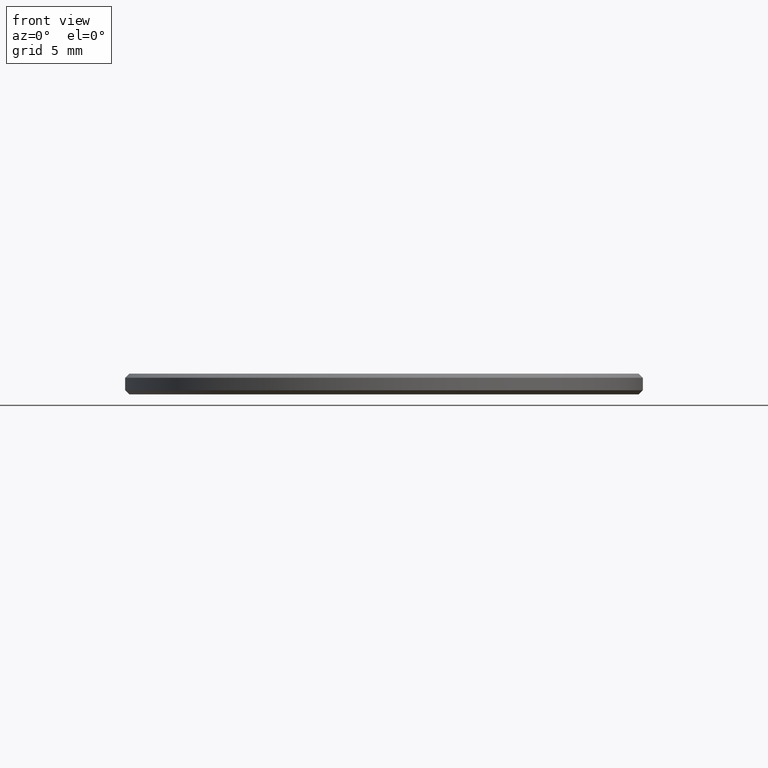
[diagram: clean part render]
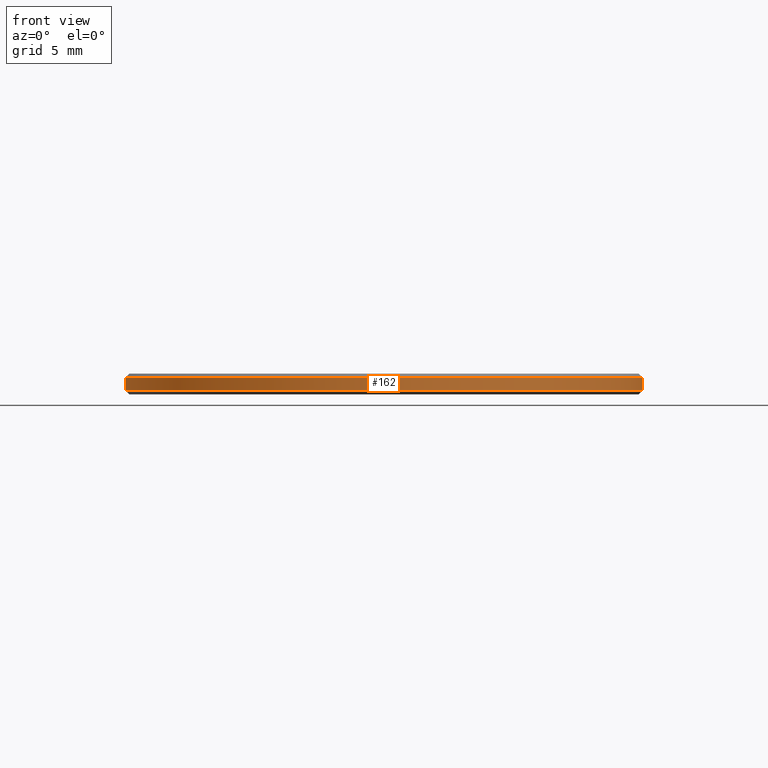
[diagram: same view with one face highlighted and labeled with its STEP entity id]
A machine part, front view. The second image highlights one B-rep face of the part: STEP entity #162.
In plain terms, the highlighted cylindrical surface (partial cylindrical patch) has radius 12.5 mm, axis along (-0, -0, -1).
Its self-contained STEP definition (entity closure, byte-faithful):
#9 = DIRECTION ( 'NONE',  ( -0.000000000000000000, -0.000000000000000000, -1.000000000000000000 ) ) ;
#10 = CARTESIAN_POINT ( 'NONE',  ( 12.50000000000000000, 1.530808498934191521E-15, 1.000000000000000000 ) ) ;
#14 = LINE ( 'NONE', #10, #15 ) ;
#15 = VECTOR ( 'NONE', #9, 1000.000000000000000 ) ;
#26 = CARTESIAN_POINT ( 'NONE',  ( 0.000000000000000000, 0.000000000000000000, 1.000000000000000000 ) ) ;
#49 = CARTESIAN_POINT ( 'NONE',  ( 0.000000000000000000, 0.000000000000000000, 0.8000000000000029310 ) ) ;
#57 = AXIS2_PLACEMENT_3D ( 'NONE', #49, #180, #197 ) ;
#58 = AXIS2_PLACEMENT_3D ( 'NONE', #159, #95, #71 ) ;
#59 = EDGE_CURVE ( 'NONE', #105, #115, #122, .T. ) ;
#64 = DIRECTION ( 'NONE',  ( -0.000000000000000000, -0.000000000000000000, -1.000000000000000000 ) ) ;
#71 = DIRECTION ( 'NONE',  ( 1.000000000000000000, 0.000000000000000000, 0.000000000000000000 ) ) ;
#79 = VERTEX_POINT ( 'NONE', #209 ) ;
#82 = CIRCLE ( 'NONE', #58, 12.50000000000000000 ) ;
#95 = DIRECTION ( 'NONE',  ( -0.000000000000000000, -0.000000000000000000, 1.000000000000000000 ) ) ;
#96 = ORIENTED_EDGE ( 'NONE', *, *, #150, .T. ) ;
#100 = ORIENTED_EDGE ( 'NONE', *, *, #200, .T. ) ;
#105 = VERTEX_POINT ( 'NONE', #229 ) ;
#108 = DIRECTION ( 'NONE',  ( -1.000000000000000000, 0.000000000000000000, 0.000000000000000000 ) ) ;
#112 = CIRCLE ( 'NONE', #57, 12.50000000000000000 ) ;
#115 = VERTEX_POINT ( 'NONE', #195 ) ;
#120 = ORIENTED_EDGE ( 'NONE', *, *, #183, .F. ) ;
#121 = EDGE_LOOP ( 'NONE', ( #120, #96, #166, #100 ) ) ;
#122 = LINE ( 'NONE', #169, #240 ) ;
#140 = AXIS2_PLACEMENT_3D ( 'NONE', #26, #175, #108 ) ;
#145 = VERTEX_POINT ( 'NONE', #214 ) ;
#150 = EDGE_CURVE ( 'NONE', #79, #105, #112, .T. ) ;
#159 = CARTESIAN_POINT ( 'NONE',  ( 0.000000000000000000, 0.000000000000000000, 0.1999999999999987899 ) ) ;
#160 = FACE_OUTER_BOUND ( 'NONE', #121, .T. ) ;
#162 = ADVANCED_FACE ( 'NONE', ( #160 ), #231, .T. ) ;
#166 = ORIENTED_EDGE ( 'NONE', *, *, #59, .T. ) ;
#169 = CARTESIAN_POINT ( 'NONE',  ( -12.50000000000000000, 0.000000000000000000, 1.000000000000000000 ) ) ;
#175 = DIRECTION ( 'NONE',  ( -0.000000000000000000, -0.000000000000000000, -1.000000000000000000 ) ) ;
#180 = DIRECTION ( 'NONE',  ( 0.000000000000000000, 0.000000000000000000, -1.000000000000000000 ) ) ;
#183 = EDGE_CURVE ( 'NONE', #79, #145, #14, .T. ) ;
#195 = CARTESIAN_POINT ( 'NONE',  ( -12.50000000000000000, 0.000000000000000000, 0.1999999999999987899 ) ) ;
#197 = DIRECTION ( 'NONE',  ( 1.000000000000000000, 0.000000000000000000, 0.000000000000000000 ) ) ;
#200 = EDGE_CURVE ( 'NONE', #115, #145, #82, .T. ) ;
#209 = CARTESIAN_POINT ( 'NONE',  ( 12.50000000000000000, 1.530808498934191521E-15, 0.8000000000000029310 ) ) ;
#214 = CARTESIAN_POINT ( 'NONE',  ( 12.50000000000000000, 1.530808498934191521E-15, 0.1999999999999987899 ) ) ;
#229 = CARTESIAN_POINT ( 'NONE',  ( -12.50000000000000000, 0.000000000000000000, 0.8000000000000029310 ) ) ;
#231 = CYLINDRICAL_SURFACE ( 'NONE', #140, 12.50000000000000000 ) ;
#240 = VECTOR ( 'NONE', #64, 1000.000000000000000 ) ;